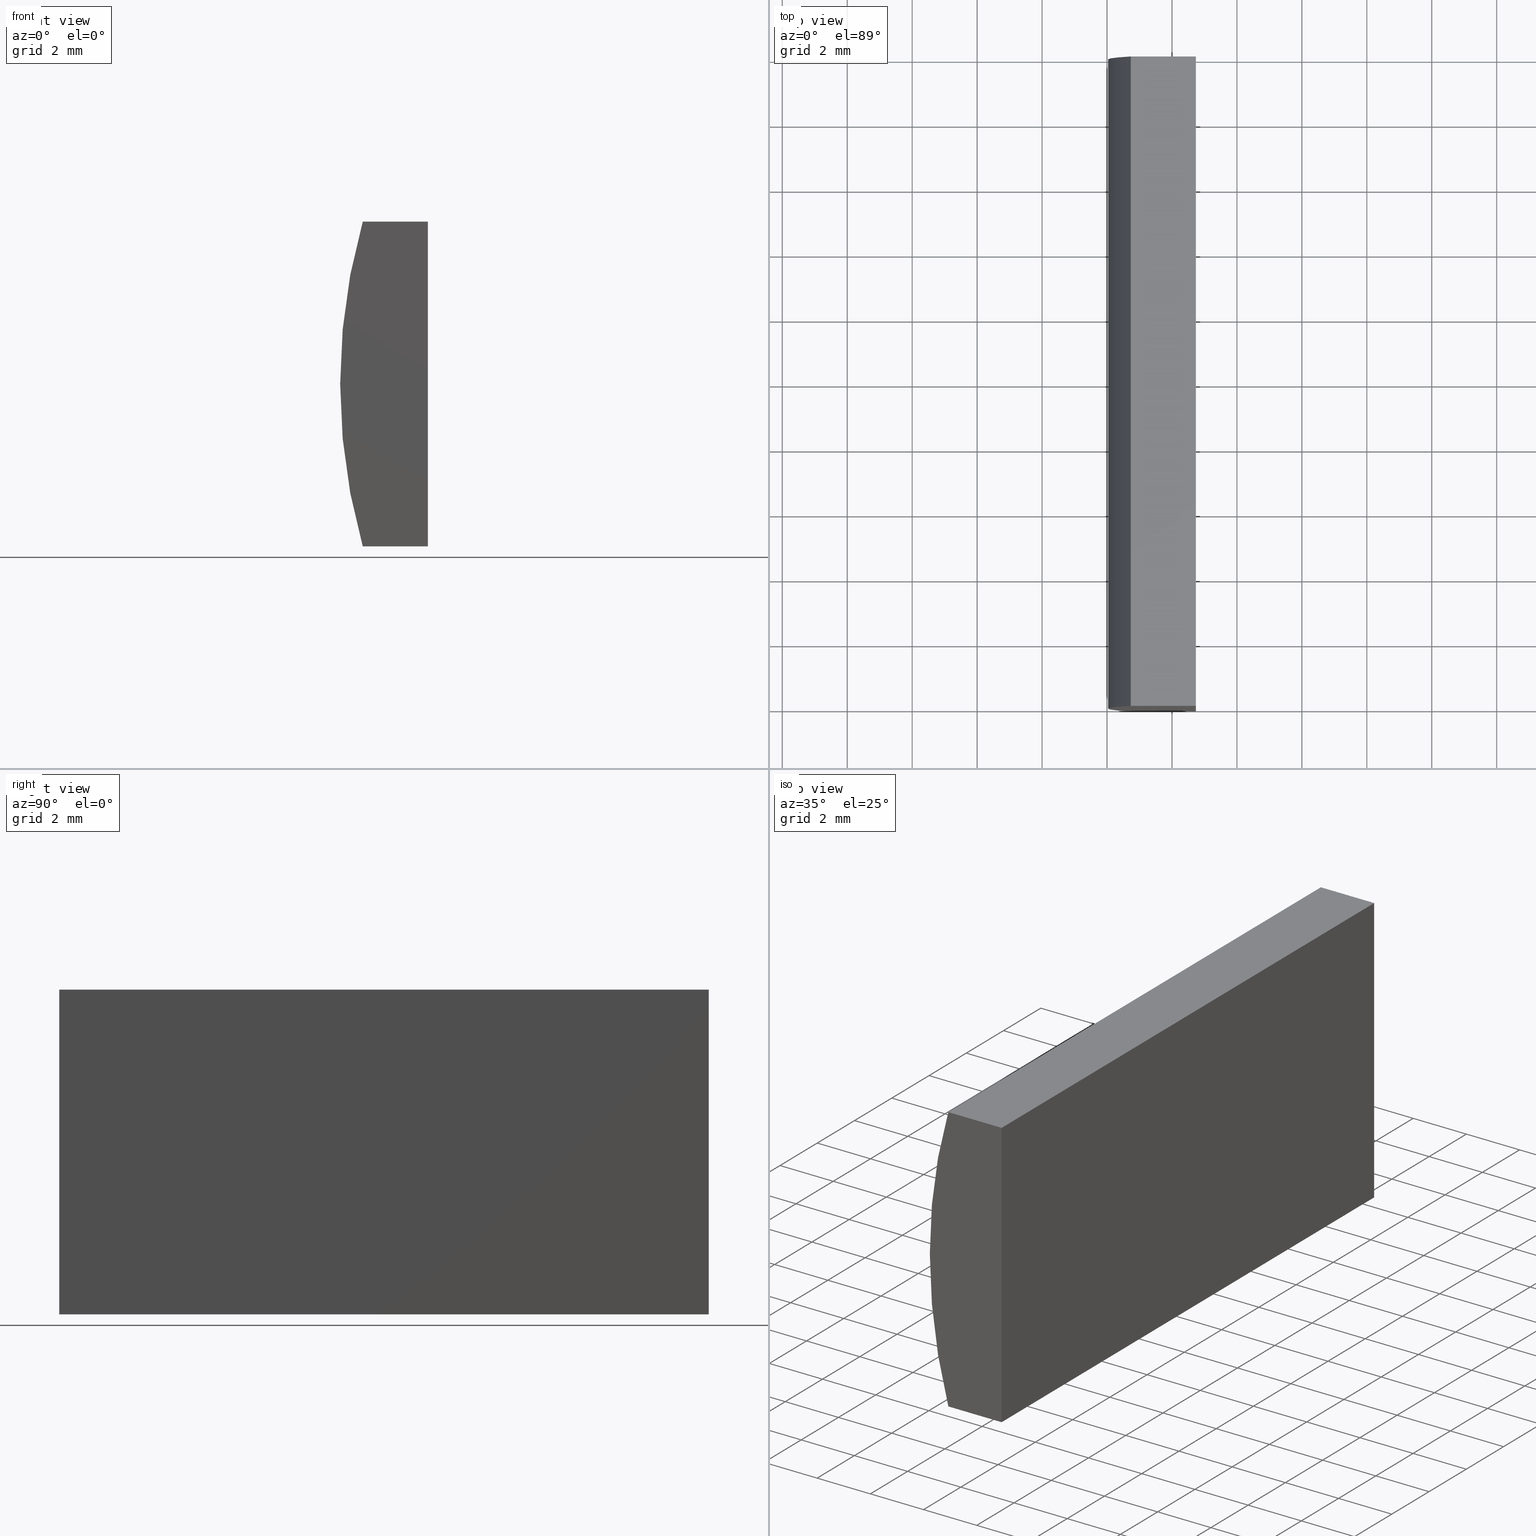
[diagram: canonical four-view strip — front | top / right | iso, engineering-drawing reading convention]
A machine part, canonical four-view strip (front | top / right | iso — engineering-drawing reading convention). The complete STEP part file that produces these views, byte-faithful:
ISO-10303-21;
HEADER;
FILE_DESCRIPTION (( 'STEP AP214' ),
    '1' );
FILE_NAME ('155282.STEP',
    '2019-06-26T02:01:35',
    ( 'user' ),
    ( '΢���й�' ),
    'SwSTEP 2.0',
    'SolidWorks 2016',
    '' );
FILE_SCHEMA (( 'AUTOMOTIVE_DESIGN' ));
ENDSEC;

DATA;
#1 = DIRECTION ( 'NONE',  ( -0.0000000000000000000, -1.000000000000000000, -0.0000000000000000000 ) ) ;
#2 = ORIENTED_EDGE ( 'NONE', *, *, #71, .T. ) ;
#3 = CARTESIAN_POINT ( 'NONE',  ( -13.26927863628862900, 0.0000000000000000000, -5.000000000000000000 ) ) ;
#4 = DIRECTION ( 'NONE',  ( -0.0000000000000000000, -1.000000000000000000, -0.0000000000000000000 ) ) ;
#5 = PLANE ( 'NONE',  #10 ) ;
#6 = ORIENTED_EDGE ( 'NONE', *, *, #40, .T. ) ;
#7 = SURFACE_STYLE_FILL_AREA ( #84 ) ;
#8 = AXIS2_PLACEMENT_3D ( 'NONE', #92, #75, #166 ) ;
#9 = PRODUCT_DEFINITION_SHAPE ( 'NONE', 'NONE',  #165 ) ;
#10 = AXIS2_PLACEMENT_3D ( 'NONE', #189, #82, #173 ) ;
#11 = ORIENTED_EDGE ( 'NONE', *, *, #118, .F. ) ;
#12 = EDGE_LOOP ( 'NONE', ( #171, #54, #145, #80 ) ) ;
#13 = ADVANCED_FACE ( 'NONE', ( #117 ), #181, .F. ) ;
#14 =( GEOMETRIC_REPRESENTATION_CONTEXT ( 3 ) GLOBAL_UNCERTAINTY_ASSIGNED_CONTEXT ( ( #152 ) ) GLOBAL_UNIT_ASSIGNED_CONTEXT ( ( #78, #147, #58 ) ) REPRESENTATION_CONTEXT ( 'NONE', 'WORKASPACE' ) );
#15 = CARTESIAN_POINT ( 'NONE',  ( 4.355204334851265500, 20.00000000000000000, 4.286263797015675000E-017 ) ) ;
#16 = EDGE_LOOP ( 'NONE', ( #44, #122, #119, #130 ) ) ;
#17 = VERTEX_POINT ( 'NONE', #136 ) ;
#18 = ORIENTED_EDGE ( 'NONE', *, *, #106, .F. ) ;
#19 = PRODUCT_CONTEXT ( 'NONE', #87, 'mechanical' ) ;
#20 = EDGE_CURVE ( 'NONE', #156, #201, #103, .T. ) ;
#21 = CARTESIAN_POINT ( 'NONE',  ( -11.26479566514873400, 0.0000000000000000000, -5.000000000000001800 ) ) ;
#22 = DIRECTION ( 'NONE',  ( -1.000000000000000000, 0.0000000000000000000, 3.469446951953613700E-016 ) ) ;
#23 = CARTESIAN_POINT ( 'NONE',  ( 0.0000000000000000000, 0.0000000000000000000, 0.0000000000000000000 ) ) ;
#24 = FACE_OUTER_BOUND ( 'NONE', #164, .T. ) ;
#25 = ORIENTED_EDGE ( 'NONE', *, *, #69, .F. ) ;
#26 = ADVANCED_FACE ( 'NONE', ( #24 ), #30, .F. ) ;
#27 = VECTOR ( 'NONE', #1, 1000.000000000000000 ) ;
#28 = VERTEX_POINT ( 'NONE', #121 ) ;
#29 = SURFACE_STYLE_FILL_AREA ( #65 ) ;
#30 = PLANE ( 'NONE',  #100 ) ;
#31 = CARTESIAN_POINT ( 'NONE',  ( -11.26479566514873400, 20.00000000000000000, -5.000000000000001800 ) ) ;
#32 = LINE ( 'NONE', #31, #140 ) ;
#33 = LINE ( 'NONE', #159, #56 ) ;
#34 = DIRECTION ( 'NONE',  ( -0.0000000000000000000, -1.000000000000000000, -0.0000000000000000000 ) ) ;
#35 = CARTESIAN_POINT ( 'NONE',  ( -11.26479566514873000, 0.0000000000000000000, 5.000000000000000000 ) ) ;
#36 = DIRECTION ( 'NONE',  ( 0.0000000000000000000, 0.0000000000000000000, 1.000000000000000000 ) ) ;
#37 = ORIENTED_EDGE ( 'NONE', *, *, #118, .T. ) ;
#38 = DIRECTION ( 'NONE',  ( 1.000000000000000000, 0.0000000000000000000, 0.0000000000000000000 ) ) ;
#39 =( GEOMETRIC_REPRESENTATION_CONTEXT ( 3 ) GLOBAL_UNCERTAINTY_ASSIGNED_CONTEXT ( ( #197 ) ) GLOBAL_UNIT_ASSIGNED_CONTEXT ( ( #143, #41, #128 ) ) REPRESENTATION_CONTEXT ( 'NONE', 'WORKASPACE' ) );
#40 = EDGE_CURVE ( 'NONE', #28, #17, #178, .T. ) ;
#41 =( NAMED_UNIT ( * ) PLANE_ANGLE_UNIT ( ) SI_UNIT ( $, .RADIAN. ) );
#42 = ORIENTED_EDGE ( 'NONE', *, *, #177, .T. ) ;
#43 = EDGE_CURVE ( 'NONE', #28, #153, #59, .T. ) ;
#44 = ORIENTED_EDGE ( 'NONE', *, *, #116, .T. ) ;
#45 = CARTESIAN_POINT ( 'NONE',  ( -13.26927863628862900, 0.0000000000000000000, -5.000000000000000000 ) ) ;
#46 = EDGE_LOOP ( 'NONE', ( #37, #42, #6, #2 ) ) ;
#47 = CARTESIAN_POINT ( 'NONE',  ( -13.26927863628862900, 20.00000000000000000, 5.000000000000000000 ) ) ;
#48 = DIRECTION ( 'NONE',  ( 8.654219072713387300E-016, -0.0000000000000000000, 1.000000000000000000 ) ) ;
#49 = DIRECTION ( 'NONE',  ( 1.000000000000000000, 0.0000000000000000000, 0.0000000000000000000 ) ) ;
#50 = ORIENTED_EDGE ( 'NONE', *, *, #96, .T. ) ;
#51 = AXIS2_PLACEMENT_3D ( 'NONE', #158, #22, #142 ) ;
#52 = LINE ( 'NONE', #45, #131 ) ;
#53 = SURFACE_STYLE_USAGE ( .BOTH. , #160 ) ;
#54 = ORIENTED_EDGE ( 'NONE', *, *, #43, .F. ) ;
#55 = ORIENTED_EDGE ( 'NONE', *, *, #116, .F. ) ;
#56 = VECTOR ( 'NONE', #38, 1000.000000000000000 ) ;
#57 = STYLED_ITEM ( 'NONE', ( #88 ), #70 ) ;
#58 =( NAMED_UNIT ( * ) SI_UNIT ( $, .STERADIAN. ) SOLID_ANGLE_UNIT ( ) );
#59 = LINE ( 'NONE', #182, #107 ) ;
#60 = DIRECTION ( 'NONE',  ( -3.469446951953613700E-016, -0.0000000000000000000, -1.000000000000000000 ) ) ;
#61 = DIRECTION ( 'NONE',  ( 1.000000000000000000, 0.0000000000000000000, -8.654219072713387300E-016 ) ) ;
#62 = VECTOR ( 'NONE', #109, 1000.000000000000000 ) ;
#63 = DIRECTION ( 'NONE',  ( 0.0000000000000000000, -0.0000000000000000000, 1.000000000000000000 ) ) ;
#64 = DIRECTION ( 'NONE',  ( -3.469446951953613700E-016, -0.0000000000000000000, -1.000000000000000000 ) ) ;
#65 = FILL_AREA_STYLE ('',( #114 ) ) ;
#66 = VECTOR ( 'NONE', #49, 1000.000000000000000 ) ;
#67 = CYLINDRICAL_SURFACE ( 'NONE', #94, 18.32000000000000400 ) ;
#68 = ORIENTED_EDGE ( 'NONE', *, *, #71, .F. ) ;
#69 = EDGE_CURVE ( 'NONE', #201, #153, #184, .T. ) ;
#70 = ADVANCED_BREP_SHAPE_REPRESENTATION ( '155282', ( #155, #105 ), #14 ) ;
#71 = EDGE_CURVE ( 'NONE', #17, #176, #139, .T. ) ;
#72 = APPLICATION_PROTOCOL_DEFINITION ( 'draft international standard', 'automotive_design', 1998, #87 ) ;
#73 = EDGE_LOOP ( 'NONE', ( #95, #172, #55, #25 ) ) ;
#74 = PRESENTATION_LAYER_ASSIGNMENT (  '', '', ( #57 ) ) ;
#75 = DIRECTION ( 'NONE',  ( 0.0000000000000000000, 0.0000000000000000000, -1.000000000000000000 ) ) ;
#76 =( GEOMETRIC_REPRESENTATION_CONTEXT ( 3 ) GLOBAL_UNCERTAINTY_ASSIGNED_CONTEXT ( ( #146 ) ) GLOBAL_UNIT_ASSIGNED_CONTEXT ( ( #151, #132, #154 ) ) REPRESENTATION_CONTEXT ( 'NONE', 'WORKASPACE' ) );
#77 = DIRECTION ( 'NONE',  ( -0.0000000000000000000, -1.000000000000000000, -0.0000000000000000000 ) ) ;
#78 =( LENGTH_UNIT ( ) NAMED_UNIT ( * ) SI_UNIT ( .MILLI., .METRE. ) );
#79 = DIRECTION ( 'NONE',  ( 0.0000000000000000000, 1.000000000000000000, 0.0000000000000000000 ) ) ;
#80 = ORIENTED_EDGE ( 'NONE', *, *, #20, .T. ) ;
#81 = DIRECTION ( 'NONE',  ( 0.0000000000000000000, 1.000000000000000000, 0.0000000000000000000 ) ) ;
#82 = DIRECTION ( 'NONE',  ( 0.0000000000000000000, 1.000000000000000000, 0.0000000000000000000 ) ) ;
#83 = DIRECTION ( 'NONE',  ( 0.0000000000000000000, 0.0000000000000000000, 1.000000000000000000 ) ) ;
#84 = FILL_AREA_STYLE ('',( #194 ) ) ;
#85 = AXIS2_PLACEMENT_3D ( 'NONE', #179, #79, #63 ) ;
#86 = VERTEX_POINT ( 'NONE', #183 ) ;
#87 = APPLICATION_CONTEXT ( 'automotive_design' ) ;
#88 = PRESENTATION_STYLE_ASSIGNMENT (( #137 ) ) ;
#89 = MECHANICAL_DESIGN_GEOMETRIC_PRESENTATION_REPRESENTATION (  '', ( #57 ), #76 ) ;
#90 = PRODUCT_DEFINITION_FORMATION_WITH_SPECIFIED_SOURCE ( '�κ�', '', #204, .NOT_KNOWN. ) ;
#91 = FACE_OUTER_BOUND ( 'NONE', #16, .T. ) ;
#92 = CARTESIAN_POINT ( 'NONE',  ( -13.26927863628862900, 20.00000000000000000, 5.000000000000000000 ) ) ;
#93 = DIRECTION ( 'NONE',  ( -1.000000000000000000, -0.0000000000000000000, 8.654219072713387300E-016 ) ) ;
#94 = AXIS2_PLACEMENT_3D ( 'NONE', #15, #4, #112 ) ;
#95 = ORIENTED_EDGE ( 'NONE', *, *, #196, .F. ) ;
#96 = EDGE_CURVE ( 'NONE', #17, #86, #32, .T. ) ;
#97 = APPLICATION_PROTOCOL_DEFINITION ( 'draft international standard', 'automotive_design', 1998, #113 ) ;
#98 = DIRECTION ( 'NONE',  ( 0.0000000000000000000, 0.0000000000000000000, 1.000000000000000000 ) ) ;
#99 = CIRCLE ( 'NONE', #138, 18.32000000000000400 ) ;
#100 = AXIS2_PLACEMENT_3D ( 'NONE', #199, #48, #61 ) ;
#101 = CARTESIAN_POINT ( 'NONE',  ( 4.355204334851265500, 20.00000000000000000, 4.286263797015675000E-017 ) ) ;
#102 = ADVANCED_FACE ( 'NONE', ( #191 ), #67, .T. ) ;
#103 = LINE ( 'NONE', #47, #62 ) ;
#104 = CLOSED_SHELL ( 'NONE', ( #102, #13, #202, #26, #157, #108 ) ) ;
#105 = AXIS2_PLACEMENT_3D ( 'NONE', #23, #36, #125 ) ;
#106 = EDGE_CURVE ( 'NONE', #176, #129, #150, .T. ) ;
#107 = VECTOR ( 'NONE', #77, 1000.000000000000000 ) ;
#108 = ADVANCED_FACE ( 'NONE', ( #110 ), #186, .F. ) ;
#109 = DIRECTION ( 'NONE',  ( -0.0000000000000000000, -1.000000000000000000, -0.0000000000000000000 ) ) ;
#110 = FACE_OUTER_BOUND ( 'NONE', #73, .T. ) ;
#111 = VECTOR ( 'NONE', #64, 1000.000000000000000 ) ;
#112 = DIRECTION ( 'NONE',  ( 0.0000000000000000000, 0.0000000000000000000, -1.000000000000000000 ) ) ;
#113 = APPLICATION_CONTEXT ( 'automotive_design' ) ;
#114 = FILL_AREA_STYLE_COLOUR ( '', #149 ) ;
#115 = CIRCLE ( 'NONE', #120, 18.32000000000000400 ) ;
#116 = EDGE_CURVE ( 'NONE', #153, #86, #192, .T. ) ;
#117 = FACE_OUTER_BOUND ( 'NONE', #12, .T. ) ;
#118 = EDGE_CURVE ( 'NONE', #176, #156, #115, .T. ) ;
#119 = ORIENTED_EDGE ( 'NONE', *, *, #40, .F. ) ;
#120 = AXIS2_PLACEMENT_3D ( 'NONE', #101, #190, #83 ) ;
#121 = CARTESIAN_POINT ( 'NONE',  ( -11.26479566514873000, 20.00000000000000000, 5.000000000000000000 ) ) ;
#122 = ORIENTED_EDGE ( 'NONE', *, *, #96, .F. ) ;
#123 = SURFACE_SIDE_STYLE ('',( #7 ) ) ;
#124 = ORIENTED_EDGE ( 'NONE', *, *, #196, .T. ) ;
#125 = DIRECTION ( 'NONE',  ( 1.000000000000000000, 0.0000000000000000000, 0.0000000000000000000 ) ) ;
#126 = CARTESIAN_POINT ( 'NONE',  ( -13.26927863628862900, 0.0000000000000000000, 5.000000000000000000 ) ) ;
#127 = PLANE ( 'NONE',  #51 ) ;
#128 =( NAMED_UNIT ( * ) SI_UNIT ( $, .STERADIAN. ) SOLID_ANGLE_UNIT ( ) );
#129 = VERTEX_POINT ( 'NONE', #3 ) ;
#130 = ORIENTED_EDGE ( 'NONE', *, *, #43, .T. ) ;
#131 = VECTOR ( 'NONE', #141, 1000.000000000000000 ) ;
#132 =( NAMED_UNIT ( * ) PLANE_ANGLE_UNIT ( ) SI_UNIT ( $, .RADIAN. ) );
#133 = CARTESIAN_POINT ( 'NONE',  ( -13.26927863628862900, 20.00000000000000000, -5.000000000000000000 ) ) ;
#134 = ORIENTED_EDGE ( 'NONE', *, *, #106, .T. ) ;
#135 = COLOUR_RGB ( '',1.000000000000000000, 1.000000000000000000, 1.000000000000000000 ) ;
#136 = CARTESIAN_POINT ( 'NONE',  ( -11.26479566514873400, 20.00000000000000000, -5.000000000000001800 ) ) ;
#137 = SURFACE_STYLE_USAGE ( .BOTH. , #123 ) ;
#138 = AXIS2_PLACEMENT_3D ( 'NONE', #188, #81, #98 ) ;
#139 = LINE ( 'NONE', #169, #148 ) ;
#140 = VECTOR ( 'NONE', #34, 1000.000000000000000 ) ;
#141 = DIRECTION ( 'NONE',  ( -1.000000000000000000, -0.0000000000000000000, 8.654219072713387300E-016 ) ) ;
#142 = DIRECTION ( 'NONE',  ( 3.469446951953613700E-016, 0.0000000000000000000, 1.000000000000000000 ) ) ;
#143 =( LENGTH_UNIT ( ) NAMED_UNIT ( * ) SI_UNIT ( .MILLI., .METRE. ) );
#144 = VECTOR ( 'NONE', #60, 1000.000000000000000 ) ;
#145 = ORIENTED_EDGE ( 'NONE', *, *, #177, .F. ) ;
#146 = UNCERTAINTY_MEASURE_WITH_UNIT (LENGTH_MEASURE( 1.000000000000000100E-005 ), #151, 'distance_accuracy_value', 'NONE');
#147 =( NAMED_UNIT ( * ) PLANE_ANGLE_UNIT ( ) SI_UNIT ( $, .RADIAN. ) );
#148 = VECTOR ( 'NONE', #93, 1000.000000000000000 ) ;
#149 = COLOUR_RGB ( '',1.000000000000000000, 1.000000000000000000, 1.000000000000000000 ) ;
#150 = LINE ( 'NONE', #133, #27 ) ;
#151 =( LENGTH_UNIT ( ) NAMED_UNIT ( * ) SI_UNIT ( .MILLI., .METRE. ) );
#152 = UNCERTAINTY_MEASURE_WITH_UNIT (LENGTH_MEASURE( 1.000000000000000100E-005 ), #78, 'distance_accuracy_value', 'NONE');
#153 = VERTEX_POINT ( 'NONE', #35 ) ;
#154 =( NAMED_UNIT ( * ) SI_UNIT ( $, .STERADIAN. ) SOLID_ANGLE_UNIT ( ) );
#155 = MANIFOLD_SOLID_BREP ( '͹̨-����1', #104 ) ;
#156 = VERTEX_POINT ( 'NONE', #175 ) ;
#157 = ADVANCED_FACE ( 'NONE', ( #174 ), #5, .T. ) ;
#158 = CARTESIAN_POINT ( 'NONE',  ( -11.26479566514873400, 20.00000000000000000, -5.000000000000001800 ) ) ;
#159 = CARTESIAN_POINT ( 'NONE',  ( -13.26927863628862900, 20.00000000000000000, 5.000000000000000000 ) ) ;
#160 = SURFACE_SIDE_STYLE ('',( #29 ) ) ;
#161 = MECHANICAL_DESIGN_GEOMETRIC_PRESENTATION_REPRESENTATION (  '', ( #168 ), #39 ) ;
#162 = PRODUCT_RELATED_PRODUCT_CATEGORY ( 'part', '', ( #204 ) ) ;
#163 = EDGE_LOOP ( 'NONE', ( #124, #193, #11, #134 ) ) ;
#164 = EDGE_LOOP ( 'NONE', ( #195, #18, #68, #50 ) ) ;
#165 = PRODUCT_DEFINITION ( 'δ֪', '', #90, #198 ) ;
#166 = DIRECTION ( 'NONE',  ( -1.000000000000000000, 0.0000000000000000000, -0.0000000000000000000 ) ) ;
#167 = CARTESIAN_POINT ( 'NONE',  ( -11.26479566514873400, 20.00000000000000000, -5.000000000000001800 ) ) ;
#168 = STYLED_ITEM ( 'NONE', ( #187 ), #155 ) ;
#169 = CARTESIAN_POINT ( 'NONE',  ( -13.26927863628862900, 20.00000000000000000, -5.000000000000000000 ) ) ;
#170 = CARTESIAN_POINT ( 'NONE',  ( -13.26927863628862900, 20.00000000000000000, -5.000000000000000000 ) ) ;
#171 = ORIENTED_EDGE ( 'NONE', *, *, #69, .T. ) ;
#172 = ORIENTED_EDGE ( 'NONE', *, *, #203, .F. ) ;
#173 = DIRECTION ( 'NONE',  ( 0.0000000000000000000, -0.0000000000000000000, 1.000000000000000000 ) ) ;
#174 = FACE_OUTER_BOUND ( 'NONE', #46, .T. ) ;
#175 = CARTESIAN_POINT ( 'NONE',  ( -13.26927863628862900, 20.00000000000000000, 5.000000000000000000 ) ) ;
#176 = VERTEX_POINT ( 'NONE', #170 ) ;
#177 = EDGE_CURVE ( 'NONE', #156, #28, #33, .T. ) ;
#178 = LINE ( 'NONE', #167, #144 ) ;
#179 = CARTESIAN_POINT ( 'NONE',  ( 4.355204334851265500, 0.0000000000000000000, 4.286263797015675000E-017 ) ) ;
#180 = PRESENTATION_LAYER_ASSIGNMENT (  '', '', ( #168 ) ) ;
#181 = PLANE ( 'NONE',  #8 ) ;
#182 = CARTESIAN_POINT ( 'NONE',  ( -11.26479566514873000, 20.00000000000000000, 5.000000000000000000 ) ) ;
#183 = CARTESIAN_POINT ( 'NONE',  ( -11.26479566514873400, 0.0000000000000000000, -5.000000000000001800 ) ) ;
#184 = LINE ( 'NONE', #200, #66 ) ;
#185 = SHAPE_DEFINITION_REPRESENTATION ( #9, #70 ) ;
#186 = PLANE ( 'NONE',  #85 ) ;
#187 = PRESENTATION_STYLE_ASSIGNMENT (( #53 ) ) ;
#188 = CARTESIAN_POINT ( 'NONE',  ( 4.355204334851265500, 0.0000000000000000000, 4.286263797015675000E-017 ) ) ;
#189 = CARTESIAN_POINT ( 'NONE',  ( 4.355204334851265500, 20.00000000000000000, 4.286263797015675000E-017 ) ) ;
#190 = DIRECTION ( 'NONE',  ( 0.0000000000000000000, 1.000000000000000000, 0.0000000000000000000 ) ) ;
#191 = FACE_OUTER_BOUND ( 'NONE', #163, .T. ) ;
#192 = LINE ( 'NONE', #21, #111 ) ;
#193 = ORIENTED_EDGE ( 'NONE', *, *, #20, .F. ) ;
#194 = FILL_AREA_STYLE_COLOUR ( '', #135 ) ;
#195 = ORIENTED_EDGE ( 'NONE', *, *, #203, .T. ) ;
#196 = EDGE_CURVE ( 'NONE', #129, #201, #99, .T. ) ;
#197 = UNCERTAINTY_MEASURE_WITH_UNIT (LENGTH_MEASURE( 1.000000000000000100E-005 ), #143, 'distance_accuracy_value', 'NONE');
#198 = PRODUCT_DEFINITION_CONTEXT ( 'detailed design', #113, 'design' ) ;
#199 = CARTESIAN_POINT ( 'NONE',  ( -13.26927863628862900, 20.00000000000000000, -5.000000000000000000 ) ) ;
#200 = CARTESIAN_POINT ( 'NONE',  ( -13.26927863628862900, 0.0000000000000000000, 5.000000000000000000 ) ) ;
#201 = VERTEX_POINT ( 'NONE', #126 ) ;
#202 = ADVANCED_FACE ( 'NONE', ( #91 ), #127, .F. ) ;
#203 = EDGE_CURVE ( 'NONE', #86, #129, #52, .T. ) ;
#204 = PRODUCT ( '155282', '155282', '', ( #19 ) ) ;
ENDSEC;
END-ISO-10303-21;
